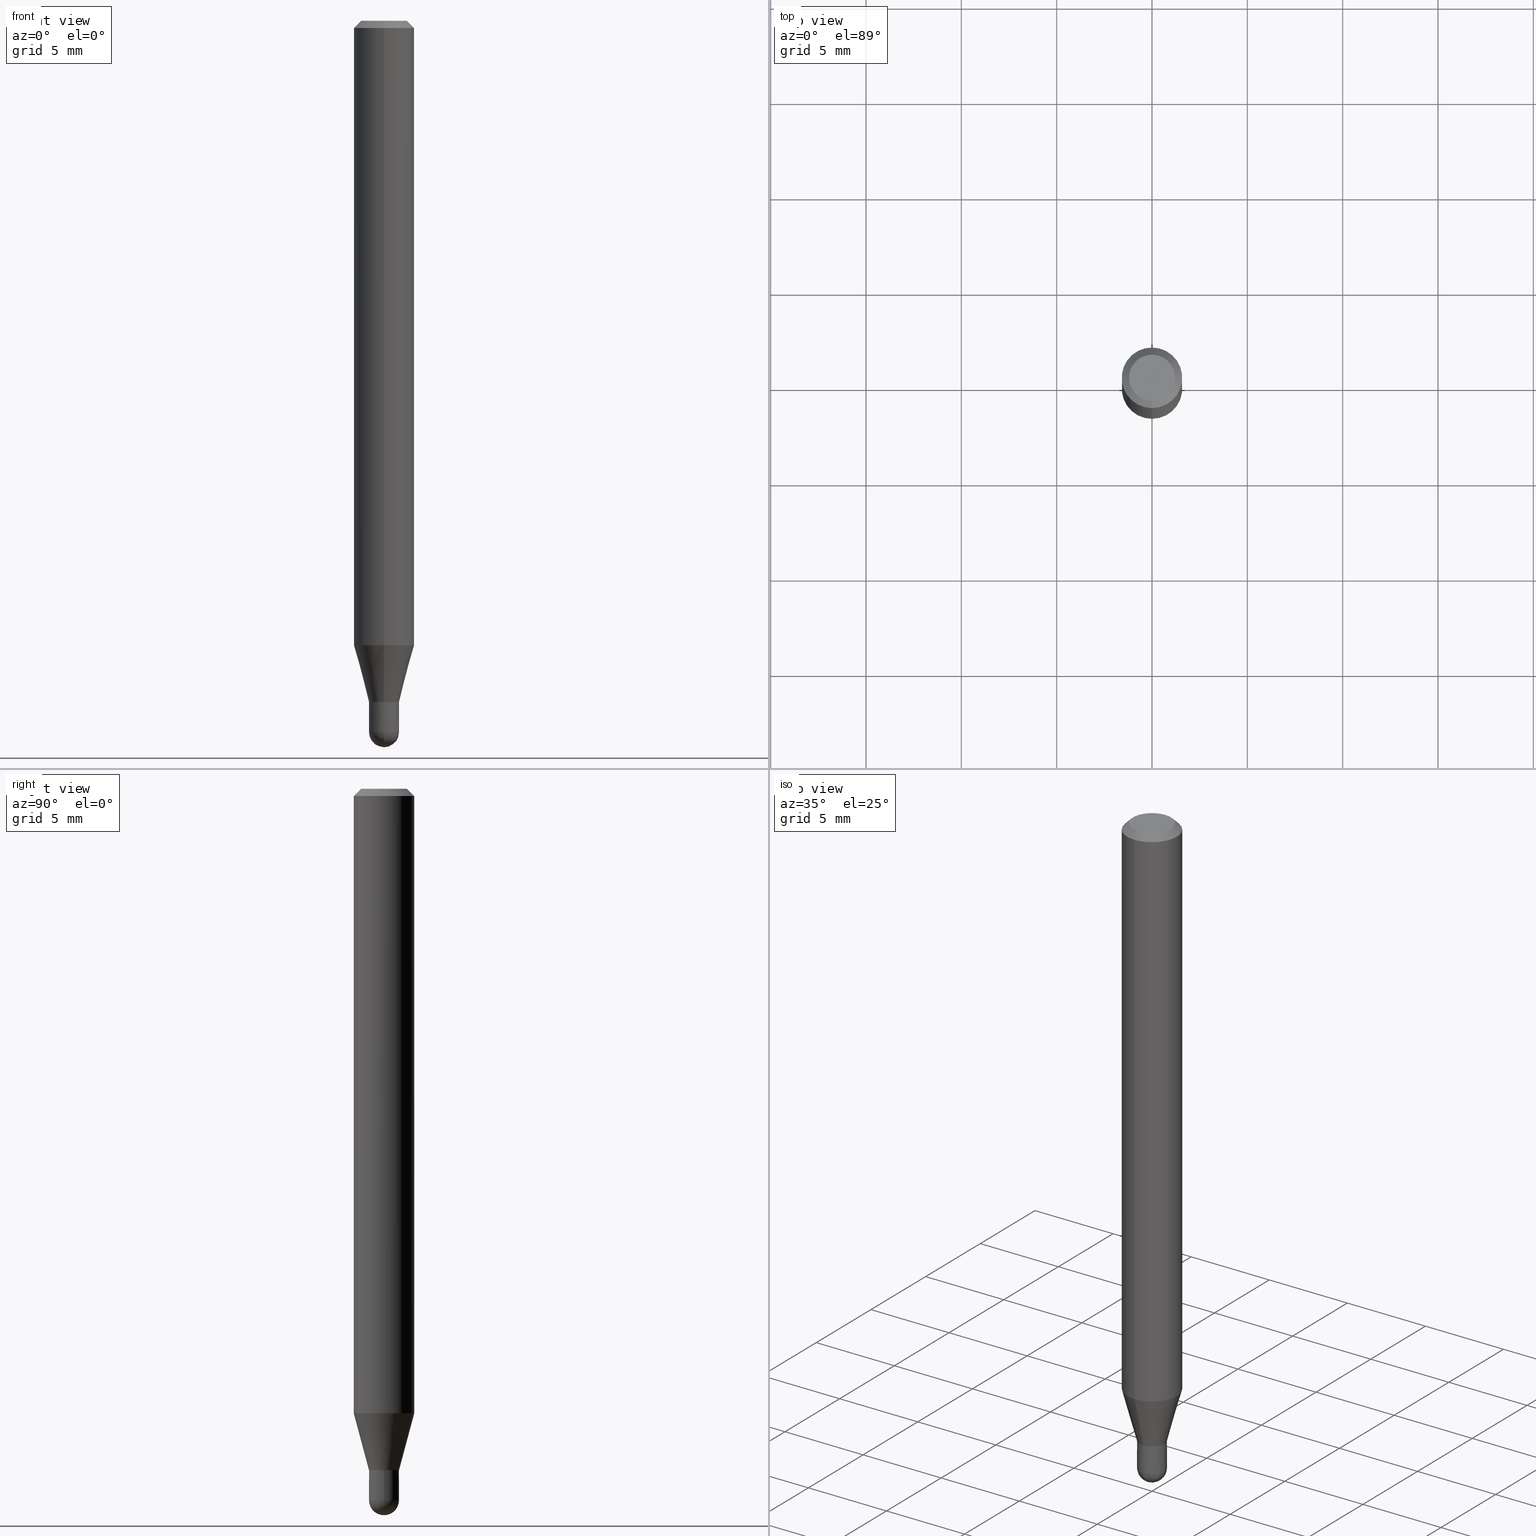
[diagram: canonical four-view strip — front | top / right | iso, engineering-drawing reading convention]
A machine part, canonical four-view strip (front | top / right | iso — engineering-drawing reading convention). The complete STEP part file that produces these views, byte-faithful:
ISO-10303-21;
HEADER;
FILE_DESCRIPTION (( 'STEP AP203' ),
    '1' );
FILE_NAME ('04373.STEP',
    '2024-03-08T18:58:08',
    ( '' ),
    ( '' ),
    'SwSTEP 2.0',
    'SolidWorks 2023',
    '' );
FILE_SCHEMA (( 'CONFIG_CONTROL_DESIGN' ));
ENDSEC;

DATA;
#1 = FACE_OUTER_BOUND ( 'NONE', #475, .T. ) ;
#2 = VERTEX_POINT ( 'NONE', #159 ) ;
#3 = APPROVAL ( #228, 'UNSPECIFIED' ) ;
#4 = CALENDAR_DATE ( 2024, 8, 3 ) ;
#5 = CIRCLE ( 'NONE', #234, 0.03049999999999999586 ) ;
#6 = CARTESIAN_POINT ( 'NONE',  ( 3.440738063177728065E-29, -4.912566581315094135E-15, -1.407000000000000028 ) ) ;
#7 = CIRCLE ( 'NONE', #428, 0.03100000000000019407 ) ;
#8 = ADVANCED_FACE ( 'NONE', ( #207 ), #368, .T. ) ;
#9 =( LENGTH_UNIT ( ) NAMED_UNIT ( * ) SI_UNIT ( $, .METRE. ) );
#10 = DIRECTION ( 'NONE',  ( 4.937700262164548042E-15, 0.7071067811865451302, -0.7071067811865499042 ) ) ;
#11 = CC_DESIGN_PERSON_AND_ORGANIZATION_ASSIGNMENT ( #48, #164, ( #324 ) ) ;
#12 = CARTESIAN_POINT ( 'NONE',  ( 0.03099999999999999978, -2.164718430082742572E-16, 1.511614800496739984E-30 ) ) ;
#13 = ORIENTED_EDGE ( 'NONE', *, *, #141, .F. ) ;
#14 = LINE ( 'NONE', #366, #240 ) ;
#15 = CARTESIAN_POINT ( 'NONE',  ( -4.287811248607203282E-16, -0.06250000000000005551, -0.01499999999999984852 ) ) ;
#16 = CIRCLE ( 'NONE', #64, 0.03099999999999999978 ) ;
#17 = AXIS2_PLACEMENT_3D ( 'NONE', #263, #445, #167 ) ;
#18 = FACE_OUTER_BOUND ( 'NONE', #50, .T. ) ;
#19 = ADVANCED_FACE ( 'NONE', ( #417 ), #375, .T. ) ;
#20 = CARTESIAN_POINT ( 'NONE',  ( 0.000000000000000000, 0.000000000000000000, 0.000000000000000000 ) ) ;
#21 = ORIENTED_EDGE ( 'NONE', *, *, #34, .T. ) ;
#22 = COORDINATED_UNIVERSAL_TIME_OFFSET ( 5, 0, .BEHIND. ) ;
#23 = DIRECTION ( 'NONE',  ( 7.105427357601000281E-15, 1.000000000000000000, 0.000000000000000000 ) ) ;
#24 = MANIFOLD_SOLID_BREP ( 'Body-Move/Copy2[2]', #27 ) ;
#25 = ORIENTED_EDGE ( 'NONE', *, *, #165, .F. ) ;
#26 = ADVANCED_FACE ( 'NONE', ( #18 ), #246, .T. ) ;
#27 = CLOSED_SHELL ( 'NONE', ( #100, #227, #26, #19, #500, #153, #108, #212, #93, #242, #8, #315 ) ) ;
#28 = DIRECTION ( 'NONE',  ( -6.982962677686266711E-15, -1.000000000000000000, 0.000000000000000000 ) ) ;
#29 = ORIENTED_EDGE ( 'NONE', *, *, #440, .T. ) ;
#30 = DIRECTION ( 'NONE',  ( -2.445442830972087969E-29, 3.491518536826648695E-15, 1.000000000000000000 ) ) ;
#31 = DIRECTION ( 'NONE',  ( -2.445442830972087689E-29, 3.491518536826648695E-15, 1.000000000000000000 ) ) ;
#32 = CIRCLE ( 'NONE', #256, 0.03099999999999999978 ) ;
#33 = FACE_OUTER_BOUND ( 'NONE', #150, .T. ) ;
#34 = EDGE_CURVE ( 'NONE', #163, #296, #95, .T. ) ;
#35 = LINE ( 'NONE', #12, #169 ) ;
#36 = PERSON ( 'UNSPECIFIED', 'UNSPECIFIED', 'UNSPECIFIED', ('UNSPECIFIED'), ('UNSPECIFIED'), ('UNSPECIFIED') ) ;
#37 = ORIENTED_EDGE ( 'NONE', *, *, #146, .T. ) ;
#38 = DIRECTION ( 'NONE',  ( -2.445468806185136597E-29, 3.491481338843145583E-15, 1.000000000000000000 ) ) ;
#39 = CC_DESIGN_APPROVAL ( #123, ( #190 ) ) ;
#40 = EDGE_CURVE ( 'NONE', #163, #458, #345, .T. ) ;
#41 = AXIS2_PLACEMENT_3D ( 'NONE', #354, #198, #147 ) ;
#42 = DIRECTION ( 'NONE',  ( 1.000000000000000000, -6.982962677686270655E-15, 0.000000000000000000 ) ) ;
#43 = CIRCLE ( 'NONE', #17, 0.03099999999999999978 ) ;
#44 = DIRECTION ( 'NONE',  ( -2.445442830972087969E-29, 3.491518536826648695E-15, 1.000000000000000000 ) ) ;
#45 = APPROVAL_STATUS ( 'not_yet_approved' ) ;
#46 = FACE_OUTER_BOUND ( 'NONE', #480, .T. ) ;
#47 = ORIENTED_EDGE ( 'NONE', *, *, #396, .T. ) ;
#48 = PERSON_AND_ORGANIZATION ( #36, #264 ) ;
#49 = DIRECTION ( 'NONE',  ( 2.438088387897960049E-29, -3.491481338843145188E-15, -1.000000000000000000 ) ) ;
#50 = EDGE_LOOP ( 'NONE', ( #497, #21, #218, #13 ) ) ;
#51 = AXIS2_PLACEMENT_3D ( 'NONE', #20, #30, #177 ) ;
#52 = DIRECTION ( 'NONE',  ( -2.445442830972087969E-29, 3.491518536826648695E-15, 1.000000000000000000 ) ) ;
#53 = PERSON_AND_ORGANIZATION ( #36, #264 ) ;
#54 = CYLINDRICAL_SURFACE ( 'NONE', #320, 0.03099999999999992345 ) ;
#55 = DATE_TIME_ROLE ( 'creation_date' ) ;
#56 = CARTESIAN_POINT ( 'NONE',  ( 1.601727569271771274E-45, -2.286891121816010784E-31, -6.549846714817980427E-17 ) ) ;
#57 = AXIS2_PLACEMENT_3D ( 'NONE', #318, #38, #402 ) ;
#58 = CYLINDRICAL_SURFACE ( 'NONE', #51, 0.03099999999999992345 ) ;
#59 = DATE_AND_TIME ( #187, #335 ) ;
#60 = ORIENTED_EDGE ( 'NONE', *, *, #512, .T. ) ;
#61 = DIRECTION ( 'NONE',  ( -6.982962677686266711E-15, -1.000000000000000000, 3.491518536826648695E-15 ) ) ;
#62 = EDGE_CURVE ( 'NONE', #380, #268, #453, .T. ) ;
#63 = DIRECTION ( 'NONE',  ( -6.982962677686265922E-15, -1.000000000000000000, 4.370956789862821150E-15 ) ) ;
#64 = AXIS2_PLACEMENT_3D ( 'NONE', #243, #287, #283 ) ;
#65 = ORIENTED_EDGE ( 'NONE', *, *, #245, .F. ) ;
#66 = CARTESIAN_POINT ( 'NONE',  ( -2.164718430082374026E-16, -0.03100000000000456210, -1.407000000000000028 ) ) ;
#67 = LINE ( 'NONE', #180, #98 ) ;
#68 = CARTESIAN_POINT ( 'NONE',  ( 2.202682480856629310E-16, 0.03099999999999473663, -1.407000000000000028 ) ) ;
#69 = EDGE_CURVE ( 'NONE', #74, #201, #32, .T. ) ;
#70 = AXIS2_PLACEMENT_3D ( 'NONE', #394, #44, #278 ) ;
#71 = AXIS2_PLACEMENT_3D ( 'NONE', #387, #188, #28 ) ;
#72 = DIRECTION ( 'NONE',  ( -6.982962677686265922E-15, -1.000000000000000000, 0.000000000000000000 ) ) ;
#73 = ORIENTED_EDGE ( 'NONE', *, *, #280, .F. ) ;
#74 = VERTEX_POINT ( 'NONE', #211 ) ;
#75 = DIRECTION ( 'NONE',  ( 5.024295867790934632E-15, 0.7071067811869542474, 0.7071067811861405650 ) ) ;
#76 = EDGE_CURVE ( 'NONE', #201, #444, #43, .T. ) ;
#77 = APPLICATION_CONTEXT ( 'configuration controlled 3d designs of mechanical parts and assemblies' ) ;
#78 = CARTESIAN_POINT ( 'NONE',  ( -2.164718430082374026E-16, -0.03100000000000456210, -1.407000000000000028 ) ) ;
#79 = APPROVAL_PERSON_ORGANIZATION ( #213, #231, #295 ) ;
#80 = CARTESIAN_POINT ( 'NONE',  ( 2.184918912462658590E-16, 0.03049999999999508313, -1.406999999999999806 ) ) ;
#81 = AXIS2_PLACEMENT_3D ( 'NONE', #372, #349, #464 ) ;
#82 = APPROVAL_STATUS ( 'not_yet_approved' ) ;
#83 = ORIENTED_EDGE ( 'NONE', *, *, #34, .F. ) ;
#84 = ORIENTED_EDGE ( 'NONE', *, *, #195, .F. ) ;
#85 = PERSON_AND_ORGANIZATION ( #36, #264 ) ;
#86 = EDGE_LOOP ( 'NONE', ( #323, #365 ) ) ;
#87 = AXIS2_PLACEMENT_3D ( 'NONE', #139, #427, #501 ) ;
#88 = DIRECTION ( 'NONE',  ( -2.445442830972087969E-29, 3.491518536826648695E-15, 1.000000000000000000 ) ) ;
#89 = CIRCLE ( 'NONE', #289, 0.03099999999999964936 ) ;
#90 = CALENDAR_DATE ( 2024, 8, 3 ) ;
#91 = ORIENTED_EDGE ( 'NONE', *, *, #141, .T. ) ;
#92 = DIRECTION ( 'NONE',  ( -6.982962677686265922E-15, -1.000000000000000000, 3.491518536826648695E-15 ) ) ;
#93 = ADVANCED_FACE ( 'NONE', ( #222 ), #328, .F. ) ;
#94 = PERSON_AND_ORGANIZATION_ROLE ( 'design_owner' ) ;
#95 = LINE ( 'NONE', #15, #419 ) ;
#96 = DIRECTION ( 'NONE',  ( -6.982962677686266711E-15, -1.000000000000000000, 3.491518536826648695E-15 ) ) ;
#97 = CIRCLE ( 'NONE', #357, 0.06250000000000000000 ) ;
#98 = VECTOR ( 'NONE', #341, 39.37007874015748143 ) ;
#99 = CARTESIAN_POINT ( 'NONE',  ( -3.773273898774340269E-16, -0.04749999999999999362, 1.003486633510859949E-16 ) ) ;
#100 = ADVANCED_FACE ( 'NONE', ( #479 ), #54, .F. ) ;
#101 = ORIENTED_EDGE ( 'NONE', *, *, #195, .T. ) ;
#102 = CARTESIAN_POINT ( 'NONE',  ( 3.439515341762241615E-29, -4.910820822046682503E-15, -1.406500000000000083 ) ) ;
#103 = VERTEX_POINT ( 'NONE', #484 ) ;
#104 = ORIENTED_EDGE ( 'NONE', *, *, #69, .T. ) ;
#105 = DIRECTION ( 'NONE',  ( -6.982962677686266711E-15, -1.000000000000000000, 0.000000000000000000 ) ) ;
#106 = APPROVAL_PERSON_ORGANIZATION ( #421, #3, #137 ) ;
#107 = CARTESIAN_POINT ( 'NONE',  ( 3.668164246458148296E-31, -5.237277805239995993E-17, -0.01500000000000006710 ) ) ;
#108 = ADVANCED_FACE ( 'NONE', ( #46 ), #330, .T. ) ;
#109 = FACE_OUTER_BOUND ( 'NONE', #145, .T. ) ;
#110 = CARTESIAN_POINT ( 'NONE',  ( -2.129803616693966881E-16, -0.03050000000000491207, -1.406999999999999806 ) ) ;
#111 = LOCAL_TIME ( 13, 58, 8.000000000000000000, #22 ) ;
#112 = EDGE_CURVE ( 'NONE', #491, #215, #401, .T. ) ;
#113 = EDGE_LOOP ( 'NONE', ( #337, #331, #259, #363 ) ) ;
#114 = CYLINDRICAL_SURFACE ( 'NONE', #57, 0.03099999999999999978 ) ;
#115 = CC_DESIGN_DATE_AND_TIME_ASSIGNMENT ( #248, #55, ( #324 ) ) ;
#116 = DIRECTION ( 'NONE',  ( -4.937700262167370586E-15, -0.7071067811869493624, 0.7071067811861454500 ) ) ;
#117 = DIRECTION ( 'NONE',  ( 0.000000000000000000, 0.000000000000000000, 1.000000000000000000 ) ) ;
#118 = CIRCLE ( 'NONE', #434, 0.04749999999999999362 ) ;
#119 = ADVANCED_FACE ( 'NONE', ( #334 ), #454, .F. ) ;
#120 = LENGTH_MEASURE_WITH_UNIT ( LENGTH_MEASURE( 0.02539999999999999897 ), #9 );
#121 = ORIENTED_EDGE ( 'NONE', *, *, #448, .F. ) ;
#122 = CARTESIAN_POINT ( 'NONE',  ( 0.000000000000000000, 0.000000000000000000, 0.000000000000000000 ) ) ;
#123 = APPROVAL ( #45, 'UNSPECIFIED' ) ;
#124 = ORIENTED_EDGE ( 'NONE', *, *, #301, .T. ) ;
#125 = FACE_OUTER_BOUND ( 'NONE', #232, .T. ) ;
#126 = CIRCLE ( 'NONE', #426, 0.03099999999999999978 ) ;
#127 = DIRECTION ( 'NONE',  ( -2.445442830972087969E-29, 3.491518536826648695E-15, 1.000000000000000000 ) ) ;
#128 = AXIS2_PLACEMENT_3D ( 'NONE', #269, #236, #461 ) ;
#129 = DIRECTION ( 'NONE',  ( -6.982962677686265922E-15, -1.000000000000000000, 3.491518536826648300E-15 ) ) ;
#130 = ORIENTED_EDGE ( 'NONE', *, *, #462, .F. ) ;
#131 = DATE_AND_TIME ( #492, #111 ) ;
#132 = DIRECTION ( 'NONE',  ( -6.982962677686265922E-15, -1.000000000000000000, 0.000000000000000000 ) ) ;
#133 = ORIENTED_EDGE ( 'NONE', *, *, #280, .T. ) ;
#134 = DIRECTION ( 'NONE',  ( 1.000000000000000000, -6.982962677686270655E-15, 0.000000000000000000 ) ) ;
#135 = CIRCLE ( 'NONE', #386, 0.03099999999999964936 ) ;
#136 = VECTOR ( 'NONE', #488, 39.37007874015748143 ) ;
#137 = APPROVAL_ROLE ( '' ) ;
#138 = CARTESIAN_POINT ( 'NONE',  ( 0.03099999999999999978, -5.128986086760580222E-15, -1.407000000000000028 ) ) ;
#139 = CARTESIAN_POINT ( 'NONE',  ( 3.592393676285966338E-29, -5.128986086760581011E-15, -1.469000000000000083 ) ) ;
#140 = CARTESIAN_POINT ( 'NONE',  ( 4.440892098500625669E-16, 0.06250000000000000000, -2.182199085516655434E-16 ) ) ;
#141 = EDGE_CURVE ( 'NONE', #458, #2, #14, .T. ) ;
#142 = AXIS2_PLACEMENT_3D ( 'NONE', #498, #312, #23 ) ;
#143 = CARTESIAN_POINT ( 'NONE',  ( 1.601727569271771274E-45, -2.286891121816010784E-31, -6.549846714817980427E-17 ) ) ;
#144 = CARTESIAN_POINT ( 'NONE',  ( 2.202682480856660617E-16, 0.03099999999999517378, -1.406500000000000083 ) ) ;
#145 = EDGE_LOOP ( 'NONE', ( #84, #471, #160, #286 ) ) ;
#146 = EDGE_CURVE ( 'NONE', #158, #413, #89, .T. ) ;
#147 = DIRECTION ( 'NONE',  ( -6.982962677686265922E-15, -1.000000000000000000, 3.483106191921935554E-15 ) ) ;
#148 = VECTOR ( 'NONE', #244, 39.37007874015748854 ) ;
#149 = DIRECTION ( 'NONE',  ( -1.000000000000000000, 6.982962677686265922E-15, -4.883557194083112340E-29 ) ) ;
#150 = EDGE_LOOP ( 'NONE', ( #37, #325, #460, #192 ) ) ;
#151 = FACE_OUTER_BOUND ( 'NONE', #508, .T. ) ;
#152 = CARTESIAN_POINT ( 'NONE',  ( 0.000000000000000000, 0.000000000000000000, 0.000000000000000000 ) ) ;
#153 = ADVANCED_FACE ( 'NONE', ( #125 ), #510, .T. ) ;
#154 = AXIS2_PLACEMENT_3D ( 'NONE', #507, #149, #362 ) ;
#155 = SECURITY_CLASSIFICATION_LEVEL ( 'unclassified' ) ;
#156 = VECTOR ( 'NONE', #31, 39.37007874015748143 ) ;
#157 = DIRECTION ( 'NONE',  ( -6.982962677686265922E-15, -1.000000000000000000, 0.000000000000000000 ) ) ;
#158 = VERTEX_POINT ( 'NONE', #66 ) ;
#159 = CARTESIAN_POINT ( 'NONE',  ( 4.440892098500942692E-16, 0.06249999999999995143, -0.01500000000000028394 ) ) ;
#160 = ORIENTED_EDGE ( 'NONE', *, *, #308, .T. ) ;
#161 = ORIENTED_EDGE ( 'NONE', *, *, #62, .F. ) ;
#162 = ORIENTED_EDGE ( 'NONE', *, *, #273, .T. ) ;
#163 = VERTEX_POINT ( 'NONE', #99 ) ;
#164 = PERSON_AND_ORGANIZATION_ROLE ( 'creator' ) ;
#165 = EDGE_CURVE ( 'NONE', #302, #444, #297, .T. ) ;
#166 = ORIENTED_EDGE ( 'NONE', *, *, #396, .F. ) ;
#167 = DIRECTION ( 'NONE',  ( 1.000000000000000000, -6.982962677686270655E-15, 0.000000000000000000 ) ) ;
#168 = ORIENTED_EDGE ( 'NONE', *, *, #448, .T. ) ;
#169 = VECTOR ( 'NONE', #329, 39.37007874015748143 ) ;
#170 = ORIENTED_EDGE ( 'NONE', *, *, #62, .T. ) ;
#171 = APPROVAL_ROLE ( '' ) ;
#172 = CARTESIAN_POINT ( 'NONE',  ( 3.592393676285966338E-29, -5.128986086760581011E-15, -1.469000000000000083 ) ) ;
#173 = MECHANICAL_CONTEXT ( 'NONE', #185, 'mechanical' ) ;
#174 = CARTESIAN_POINT ( 'NONE',  ( 0.000000000000000000, 0.000000000000000000, 0.000000000000000000 ) ) ;
#175 = ORIENTED_EDGE ( 'NONE', *, *, #317, .T. ) ;
#176 = SHAPE_DEFINITION_REPRESENTATION ( #183, #486 ) ;
#177 = DIRECTION ( 'NONE',  ( -6.982962677686265922E-15, -1.000000000000000000, 3.491518536826648300E-15 ) ) ;
#178 = ORIENTED_EDGE ( 'NONE', *, *, #308, .F. ) ;
#179 = ORIENTED_EDGE ( 'NONE', *, *, #252, .F. ) ;
#180 = CARTESIAN_POINT ( 'NONE',  ( 2.202682480856304644E-16, 0.03099999999999992345, -1.082370746416258340E-16 ) ) ;
#181 = AXIS2_PLACEMENT_3D ( 'NONE', #251, #379, #92 ) ;
#182 = LINE ( 'NONE', #466, #210 ) ;
#183 = PRODUCT_DEFINITION_SHAPE ( 'NONE', 'NONE',  #324 ) ;
#184 = ORIENTED_EDGE ( 'NONE', *, *, #350, .T. ) ;
#185 = APPLICATION_CONTEXT ( 'configuration controlled 3d designs of mechanical parts and assemblies' ) ;
#186 = CARTESIAN_POINT ( 'NONE',  ( 3.440774610302487541E-29, -4.912514243752305891E-15, -1.407000000000000028 ) ) ;
#187 = CALENDAR_DATE ( 2024, 8, 3 ) ;
#188 = DIRECTION ( 'NONE',  ( -2.445442830972087969E-29, 3.491518536826648695E-15, 1.000000000000000000 ) ) ;
#189 = CC_DESIGN_DATE_AND_TIME_ASSIGNMENT ( #59, #463, ( #494 ) ) ;
#190 = PRODUCT_DEFINITION_FORMATION_WITH_SPECIFIED_SOURCE ( 'ANY', '', #275, .NOT_KNOWN. ) ;
#191 = CIRCLE ( 'NONE', #395, 0.06250000000000000000 ) ;
#192 = ORIENTED_EDGE ( 'NONE', *, *, #423, .F. ) ;
#193 = AXIS2_PLACEMENT_3D ( 'NONE', #107, #382, #425 ) ;
#194 = CARTESIAN_POINT ( 'NONE',  ( 3.440738063177728065E-29, -4.912566581315094135E-15, -1.407000000000000028 ) ) ;
#195 = EDGE_CURVE ( 'NONE', #413, #361, #67, .T. ) ;
#196 = CARTESIAN_POINT ( 'NONE',  ( 3.589742660789510177E-29, -5.132782491837937933E-15, -1.469000000000000083 ) ) ;
#197 = VERTEX_POINT ( 'NONE', #138 ) ;
#198 = DIRECTION ( 'NONE',  ( -2.445442830972087969E-29, 3.491518536826648695E-15, 1.000000000000000000 ) ) ;
#199 = CONICAL_SURFACE ( 'NONE', #477, 0.03099999999999964936, 0.2617993877991574014 ) ;
#200 = SPHERICAL_SURFACE ( 'NONE', #449, 0.03100000000000001713 ) ;
#201 = VERTEX_POINT ( 'NONE', #307 ) ;
#202 = ORIENTED_EDGE ( 'NONE', *, *, #423, .T. ) ;
#203 = DIRECTION ( 'NONE',  ( -6.982962677686265922E-15, -1.000000000000000000, 0.000000000000000000 ) ) ;
#204 = EDGE_CURVE ( 'NONE', #237, #296, #430, .T. ) ;
#205 = ORIENTED_EDGE ( 'NONE', *, *, #301, .F. ) ;
#206 = CALENDAR_DATE ( 2024, 8, 3 ) ;
#207 = FACE_OUTER_BOUND ( 'NONE', #437, .T. ) ;
#208 = APPROVAL_PERSON_ORGANIZATION ( #451, #123, #171 ) ;
#209 = COORDINATED_UNIVERSAL_TIME_OFFSET ( 5, 0, .BEHIND. ) ;
#210 = VECTOR ( 'NONE', #347, 39.37007874015748143 ) ;
#211 = CARTESIAN_POINT ( 'NONE',  ( -2.164718430082383640E-16, -0.03100000000000513803, -1.469000000000000083 ) ) ;
#212 = ADVANCED_FACE ( 'NONE', ( #422 ), #359, .T. ) ;
#213 = PERSON_AND_ORGANIZATION ( #36, #264 ) ;
#214 = DIRECTION ( 'NONE',  ( 6.982962677686265922E-15, 1.000000000000000000, -3.483106191921935554E-15 ) ) ;
#215 = VERTEX_POINT ( 'NONE', #459 ) ;
#216 = ORIENTED_EDGE ( 'NONE', *, *, #411, .F. ) ;
#217 = PERSON_AND_ORGANIZATION_ROLE ( 'classification_officer' ) ;
#218 = ORIENTED_EDGE ( 'NONE', *, *, #383, .T. ) ;
#219 = CARTESIAN_POINT ( 'NONE',  ( 3.668164246458148296E-31, -5.237277805239995993E-17, -0.01500000000000006710 ) ) ;
#220 = VECTOR ( 'NONE', #75, 39.37007874015748854 ) ;
#221 = PERSON_AND_ORGANIZATION ( #36, #264 ) ;
#222 = FACE_OUTER_BOUND ( 'NONE', #86, .T. ) ;
#223 = ORIENTED_EDGE ( 'NONE', *, *, #462, .T. ) ;
#224 = AXIS2_PLACEMENT_3D ( 'NONE', #340, #52, #489 ) ;
#225 = ORIENTED_EDGE ( 'NONE', *, *, #204, .T. ) ;
#226 = DIRECTION ( 'NONE',  ( -2.445442830972087689E-29, 3.491518536826648695E-15, 1.000000000000000000 ) ) ;
#227 = ADVANCED_FACE ( 'NONE', ( #389 ), #351, .T. ) ;
#228 = APPROVAL_STATUS ( 'not_yet_approved' ) ;
#229 = ORIENTED_EDGE ( 'NONE', *, *, #204, .F. ) ;
#230 = CARTESIAN_POINT ( 'NONE',  ( -4.364351673553912750E-16, -0.06250000000000005551, -0.01499999999999984852 ) ) ;
#231 = APPROVAL ( #82, 'UNSPECIFIED' ) ;
#232 = EDGE_LOOP ( 'NONE', ( #284, #424, #202, #166 ) ) ;
#233 = LINE ( 'NONE', #140, #156 ) ;
#234 = AXIS2_PLACEMENT_3D ( 'NONE', #469, #316, #435 ) ;
#235 = FACE_OUTER_BOUND ( 'NONE', #490, .T. ) ;
#236 = DIRECTION ( 'NONE',  ( -2.445442830972087969E-29, 3.491518536826648695E-15, 1.000000000000000000 ) ) ;
#237 = VERTEX_POINT ( 'NONE', #420 ) ;
#238 = CARTESIAN_POINT ( 'NONE',  ( 3.440774610302487541E-29, -4.912514243752305891E-15, -1.407000000000000028 ) ) ;
#239 = LOCAL_TIME ( 13, 58, 8.000000000000000000, #209 ) ;
#240 = VECTOR ( 'NONE', #10, 39.37007874015748143 ) ;
#241 = FACE_OUTER_BOUND ( 'NONE', #358, .T. ) ;
#242 = ADVANCED_FACE ( 'NONE', ( #235 ), #344, .F. ) ;
#243 = CARTESIAN_POINT ( 'NONE',  ( 3.592393676285966338E-29, -5.128986086760581011E-15, -1.469000000000000083 ) ) ;
#244 = DIRECTION ( 'NONE',  ( -1.807323732225378260E-15, -0.2588190451025250693, 0.9659258262890670910 ) ) ;
#245 = EDGE_CURVE ( 'NONE', #388, #361, #7, .T. ) ;
#246 = CONICAL_SURFACE ( 'NONE', #408, 0.06250000000000000000, 0.7853981633974483900 ) ;
#247 = DIRECTION ( 'NONE',  ( -6.982962677686265922E-15, -1.000000000000000000, 0.000000000000000000 ) ) ;
#248 = DATE_AND_TIME ( #4, #239 ) ;
#249 = COORDINATED_UNIVERSAL_TIME_OFFSET ( 5, 0, .BEHIND. ) ;
#250 = ORIENTED_EDGE ( 'NONE', *, *, #512, .F. ) ;
#251 = CARTESIAN_POINT ( 'NONE',  ( 0.000000000000000000, 0.000000000000000000, 0.000000000000000000 ) ) ;
#252 = EDGE_CURVE ( 'NONE', #458, #163, #118, .T. ) ;
#253 = CC_DESIGN_SECURITY_CLASSIFICATION ( #494, ( #190 ) ) ;
#254 = ORIENTED_EDGE ( 'NONE', *, *, #112, .F. ) ;
#255 = PERSON_AND_ORGANIZATION ( #36, #264 ) ;
#256 = AXIS2_PLACEMENT_3D ( 'NONE', #172, #303, #298 ) ;
#257 = DIRECTION ( 'NONE',  ( -2.445442830972087969E-29, 3.491518536826648695E-15, 1.000000000000000000 ) ) ;
#258 = EDGE_LOOP ( 'NONE', ( #83, #179, #91, #274 ) ) ;
#259 = ORIENTED_EDGE ( 'NONE', *, *, #76, .F. ) ;
#260 = APPROVAL_DATE_TIME ( #482, #123 ) ;
#261 = CARTESIAN_POINT ( 'NONE',  ( 2.164718430083086219E-16, 0.03099999999999508704, -1.407000000000000028 ) ) ;
#262 = APPLICATION_PROTOCOL_DEFINITION ( 'international standard', 'config_control_design', 1994, #77 ) ;
#263 = CARTESIAN_POINT ( 'NONE',  ( 3.592393676285966338E-29, -5.128986086760581011E-15, -1.469000000000000083 ) ) ;
#264 = ORGANIZATION ( 'UNSPECIFIED', 'UNSPECIFIED', '' ) ;
#265 = DIRECTION ( 'NONE',  ( -1.000000000000000000, 6.982962677686265922E-15, -4.876176775795935793E-29 ) ) ;
#266 = AXIS2_PLACEMENT_3D ( 'NONE', #410, #88, #300 ) ;
#267 = LOCAL_TIME ( 13, 58, 8.000000000000000000, #409 ) ;
#268 = VERTEX_POINT ( 'NONE', #348 ) ;
#269 = CARTESIAN_POINT ( 'NONE',  ( 3.440738063177726944E-29, -4.912566581315093346E-15, -1.406999999999999806 ) ) ;
#270 = ORIENTED_EDGE ( 'NONE', *, *, #350, .F. ) ;
#271 = ORIENTED_EDGE ( 'NONE', *, *, #338, .T. ) ;
#272 = DIRECTION ( 'NONE',  ( -2.445442830972087969E-29, 3.491518536826648695E-15, 1.000000000000000000 ) ) ;
#273 = EDGE_CURVE ( 'NONE', #237, #103, #191, .T. ) ;
#274 = ORIENTED_EDGE ( 'NONE', *, *, #495, .T. ) ;
#275 = PRODUCT ( '04373', '04373', '', ( #173 ) ) ;
#276 = DIRECTION ( 'NONE',  ( -2.445442830972087969E-29, 3.491518536826648695E-15, 1.000000000000000000 ) ) ;
#277 = DIRECTION ( 'NONE',  ( -2.445442830972087408E-29, 3.491518536826648695E-15, 1.000000000000000000 ) ) ;
#278 = DIRECTION ( 'NONE',  ( -6.982962677686265922E-15, -1.000000000000000000, 3.483106191921935554E-15 ) ) ;
#279 = DIRECTION ( 'NONE',  ( -2.445442830972087969E-29, 3.491518536826648695E-15, 1.000000000000000000 ) ) ;
#280 = EDGE_CURVE ( 'NONE', #103, #2, #233, .T. ) ;
#281 = DESIGN_CONTEXT ( 'detailed design', #77, 'design' ) ;
#282 = CIRCLE ( 'NONE', #319, 0.03099999999999999978 ) ;
#283 = DIRECTION ( 'NONE',  ( 1.000000000000000000, -6.982962677686270655E-15, 0.000000000000000000 ) ) ;
#284 = ORIENTED_EDGE ( 'NONE', *, *, #404, .F. ) ;
#285 = DIRECTION ( 'NONE',  ( -2.445442830972087969E-29, 3.491518536826648695E-15, 1.000000000000000000 ) ) ;
#286 = ORIENTED_EDGE ( 'NONE', *, *, #245, .T. ) ;
#287 = DIRECTION ( 'NONE',  ( -2.445468806185136597E-29, 3.491481338843145583E-15, 1.000000000000000000 ) ) ;
#288 = CC_DESIGN_PERSON_AND_ORGANIZATION_ASSIGNMENT ( #255, #94, ( #275 ) ) ;
#289 = AXIS2_PLACEMENT_3D ( 'NONE', #6, #414, #157 ) ;
#290 =( NAMED_UNIT ( * ) PLANE_ANGLE_UNIT ( ) SI_UNIT ( $, .RADIAN. ) );
#291 = CARTESIAN_POINT ( 'NONE',  ( -0.03099999999999999978, 2.202682480856310560E-16, -1.524869877979020612E-30 ) ) ;
#292 = APPLICATION_PROTOCOL_DEFINITION ( 'international standard', 'config_control_design', 1994, #185 ) ;
#293 = DIRECTION ( 'NONE',  ( 2.445442830972087969E-29, -3.491518536826648695E-15, -1.000000000000000000 ) ) ;
#294 = CIRCLE ( 'NONE', #41, 0.06250000000000000000 ) ;
#295 = APPROVAL_ROLE ( '' ) ;
#296 = VERTEX_POINT ( 'NONE', #230 ) ;
#297 = CIRCLE ( 'NONE', #142, 0.03100000000000001713 ) ;
#298 = DIRECTION ( 'NONE',  ( 1.000000000000000000, -6.982962677686270655E-15, 0.000000000000000000 ) ) ;
#299 = EDGE_LOOP ( 'NONE', ( #168, #175 ) ) ;
#300 = DIRECTION ( 'NONE',  ( -6.982962677686265922E-15, -1.000000000000000000, 0.000000000000000000 ) ) ;
#301 = EDGE_CURVE ( 'NONE', #361, #388, #306, .T. ) ;
#302 = VERTEX_POINT ( 'NONE', #314 ) ;
#303 = DIRECTION ( 'NONE',  ( -2.445468806185136597E-29, 3.491481338843145583E-15, 1.000000000000000000 ) ) ;
#304 = CIRCLE ( 'NONE', #87, 0.03099999999999999978 ) ;
#305 = LINE ( 'NONE', #457, #220 ) ;
#306 = CIRCLE ( 'NONE', #71, 0.03100000000000019407 ) ;
#307 = CARTESIAN_POINT ( 'NONE',  ( 0.03099999999999999978, -5.237222008264717388E-15, -1.469000000000000083 ) ) ;
#308 = EDGE_CURVE ( 'NONE', #158, #388, #182, .T. ) ;
#309 = EDGE_LOOP ( 'NONE', ( #397, #184, #65, #130 ) ) ;
#310 = DIRECTION ( 'NONE',  ( -6.982962677686265922E-15, -1.000000000000000000, 3.491518536826648695E-15 ) ) ;
#311 = MANIFOLD_SOLID_BREP ( 'Body-Move/Copy2[1]', #456 ) ;
#312 = DIRECTION ( 'NONE',  ( 1.000000000000000000, -7.105427357601001070E-15, 4.926315508542082329E-29 ) ) ;
#313 = DIMENSIONAL_EXPONENTS ( 1.000000000000000000, 0.000000000000000000, 0.000000000000000000, 0.000000000000000000, 0.000000000000000000, 0.000000000000000000, 0.000000000000000000 ) ;
#314 = CARTESIAN_POINT ( 'NONE',  ( 3.664226686033021215E-29, -5.242916615880753165E-15, -1.500000000000000222 ) ) ;
#315 = ADVANCED_FACE ( 'NONE', ( #109 ), #58, .F. ) ;
#316 = DIRECTION ( 'NONE',  ( -2.445442830972087969E-29, 3.491518536826648695E-15, 1.000000000000000000 ) ) ;
#317 = EDGE_CURVE ( 'NONE', #268, #197, #282, .T. ) ;
#318 = CARTESIAN_POINT ( 'NONE',  ( 0.000000000000000000, 0.000000000000000000, 0.000000000000000000 ) ) ;
#319 = AXIS2_PLACEMENT_3D ( 'NONE', #186, #499, #134 ) ;
#320 = AXIS2_PLACEMENT_3D ( 'NONE', #174, #257, #129 ) ;
#321 = CYLINDRICAL_SURFACE ( 'NONE', #367, 0.03099999999999999978 ) ;
#322 = CARTESIAN_POINT ( 'NONE',  ( 3.840629472727447874E-16, 0.04749999999999999362, -2.313455976474456528E-16 ) ) ;
#323 = ORIENTED_EDGE ( 'NONE', *, *, #252, .T. ) ;
#324 = PRODUCT_DEFINITION ( 'UNKNOWN', '', #190, #281 ) ;
#325 = ORIENTED_EDGE ( 'NONE', *, *, #404, .T. ) ;
#326 = CARTESIAN_POINT ( 'NONE',  ( -0.03099999999999999978, -4.800481917170811803E-15, -1.469000000000000083 ) ) ;
#327 = LOCAL_TIME ( 13, 58, 8.000000000000000000, #249 ) ;
#328 = PLANE ( 'NONE',  #496 ) ;
#329 = DIRECTION ( 'NONE',  ( -2.445468806185136877E-29, 3.491481338843145188E-15, 1.000000000000000000 ) ) ;
#330 = CYLINDRICAL_SURFACE ( 'NONE', #224, 0.06250000000000000000 ) ;
#331 = ORIENTED_EDGE ( 'NONE', *, *, #165, .T. ) ;
#332 = DIRECTION ( 'NONE',  ( 1.000000000000000000, 0.000000000000000000, 0.000000000000000000 ) ) ;
#333 = ORIENTED_EDGE ( 'NONE', *, *, #383, .F. ) ;
#334 = FACE_OUTER_BOUND ( 'NONE', #299, .T. ) ;
#335 = LOCAL_TIME ( 13, 58, 8.000000000000000000, #373 ) ;
#336 = DIRECTION ( 'NONE',  ( -2.445442830972087969E-29, 3.491518536826648695E-15, 1.000000000000000000 ) ) ;
#337 = ORIENTED_EDGE ( 'NONE', *, *, #355, .F. ) ;
#338 = EDGE_CURVE ( 'NONE', #444, #380, #304, .T. ) ;
#339 = PERSON_AND_ORGANIZATION_ROLE ( 'design_supplier' ) ;
#340 = CARTESIAN_POINT ( 'NONE',  ( 0.000000000000000000, 0.000000000000000000, 0.000000000000000000 ) ) ;
#341 = DIRECTION ( 'NONE',  ( -2.445442830972087689E-29, 3.491518536826648695E-15, 1.000000000000000000 ) ) ;
#342 = AXIS2_PLACEMENT_3D ( 'NONE', #122, #117, #332 ) ;
#343 = APPROVAL_DATE_TIME ( #131, #3 ) ;
#344 = PLANE ( 'NONE',  #504 ) ;
#345 = CIRCLE ( 'NONE', #450, 0.04749999999999999362 ) ;
#346 = ORIENTED_EDGE ( 'NONE', *, *, #112, .T. ) ;
#347 = DIRECTION ( 'NONE',  ( -2.445442830972087689E-29, 3.491518536826648695E-15, 1.000000000000000000 ) ) ;
#348 = CARTESIAN_POINT ( 'NONE',  ( -0.03099999999999999978, -4.800481917170811803E-15, -1.407000000000000028 ) ) ;
#349 = DIRECTION ( 'NONE',  ( -2.445442830972087969E-29, 3.491518536826648695E-15, 1.000000000000000000 ) ) ;
#350 = EDGE_CURVE ( 'NONE', #491, #361, #305, .T. ) ;
#351 = CONICAL_SURFACE ( 'NONE', #128, 0.03049999999999999586, 0.7853981633980202659 ) ;
#352 = CARTESIAN_POINT ( 'NONE',  ( 3.440738063177728065E-29, -4.912566581315094135E-15, -1.407000000000000028 ) ) ;
#353 = UNCERTAINTY_MEASURE_WITH_UNIT (LENGTH_MEASURE( 1.000000000000000082E-05 ), #377, 'distance_accuracy_value', 'NONE');
#354 = CARTESIAN_POINT ( 'NONE',  ( 3.668164246458148296E-31, -5.237277805239995993E-17, -0.01500000000000006710 ) ) ;
#355 = EDGE_CURVE ( 'NONE', #302, #74, #502, .T. ) ;
#356 = DIRECTION ( 'NONE',  ( 1.000000000000000000, -6.982962677686265922E-15, 4.883557194083112340E-29 ) ) ;
#357 = AXIS2_PLACEMENT_3D ( 'NONE', #511, #509, #476 ) ;
#358 = EDGE_LOOP ( 'NONE', ( #25, #381, #472, #473 ) ) ;
#359 = CONICAL_SURFACE ( 'NONE', #193, 0.06250000000000000000, 0.7853981633974483900 ) ;
#360 = DIRECTION ( 'NONE',  ( -2.445468806185136597E-29, 3.491481338843145583E-15, 1.000000000000000000 ) ) ;
#361 = VERTEX_POINT ( 'NONE', #144 ) ;
#362 = DIRECTION ( 'NONE',  ( -6.982962677686265922E-15, -1.000000000000000000, 0.000000000000000000 ) ) ;
#363 = ORIENTED_EDGE ( 'NONE', *, *, #69, .F. ) ;
#364 =( NAMED_UNIT ( * ) SI_UNIT ( $, .STERADIAN. ) SOLID_ANGLE_UNIT ( ) );
#365 = ORIENTED_EDGE ( 'NONE', *, *, #40, .T. ) ;
#366 = CARTESIAN_POINT ( 'NONE',  ( 4.364351673553919652E-16, 0.06249999999999995143, -0.01500000000000028394 ) ) ;
#367 = AXIS2_PLACEMENT_3D ( 'NONE', #152, #360, #398 ) ;
#368 = CONICAL_SURFACE ( 'NONE', #266, 0.03049999999999999586, 0.7853981633980202659 ) ;
#369 = DIRECTION ( 'NONE',  ( 1.000000000000000000, -6.982962677686265922E-15, 4.883557194083112340E-29 ) ) ;
#370 = CARTESIAN_POINT ( 'NONE',  ( 3.316907271900976096E-16, 0.04749999999999999362, -1.985963640733557137E-16 ) ) ;
#371 = SPHERICAL_SURFACE ( 'NONE', #487, 0.03100000000000001713 ) ;
#372 = CARTESIAN_POINT ( 'NONE',  ( 3.440738063177728065E-29, -4.912566581315094135E-15, -1.407000000000000028 ) ) ;
#373 = COORDINATED_UNIVERSAL_TIME_OFFSET ( 5, 0, .BEHIND. ) ;
#374 = ADVANCED_FACE ( 'NONE', ( #474 ), #200, .T. ) ;
#375 = CYLINDRICAL_SURFACE ( 'NONE', #181, 0.06250000000000000000 ) ;
#376 = ORIENTED_EDGE ( 'NONE', *, *, #495, .F. ) ;
#377 =( CONVERSION_BASED_UNIT ( 'INCH', #120 ) LENGTH_UNIT ( ) NAMED_UNIT ( #313 ) );
#378 = AXIS2_PLACEMENT_3D ( 'NONE', #481, #127, #132 ) ;
#379 = DIRECTION ( 'NONE',  ( -2.445442830972087969E-29, 3.491518536826648695E-15, 1.000000000000000000 ) ) ;
#380 = VERTEX_POINT ( 'NONE', #326 ) ;
#381 = ORIENTED_EDGE ( 'NONE', *, *, #355, .T. ) ;
#382 = DIRECTION ( 'NONE',  ( 2.445442830972087969E-29, -3.491518536826648695E-15, -1.000000000000000000 ) ) ;
#383 = EDGE_CURVE ( 'NONE', #296, #2, #294, .T. ) ;
#384 = CARTESIAN_POINT ( 'NONE',  ( -4.364351673553916201E-16, -0.06250000000000000000, 2.182199085516655434E-16 ) ) ;
#385 = ORIENTED_EDGE ( 'NONE', *, *, #429, .F. ) ;
#386 = AXIS2_PLACEMENT_3D ( 'NONE', #352, #285, #203 ) ;
#387 = CARTESIAN_POINT ( 'NONE',  ( 3.439515341762241615E-29, -4.910820822046682503E-15, -1.406500000000000083 ) ) ;
#388 = VERTEX_POINT ( 'NONE', #399 ) ;
#389 = FACE_OUTER_BOUND ( 'NONE', #309, .T. ) ;
#390 = CARTESIAN_POINT ( 'NONE',  ( 3.153252781073657425E-29, -4.502105057202427276E-15, -1.289440399561582851 ) ) ;
#391 = ADVANCED_FACE ( 'NONE', ( #1 ), #321, .T. ) ;
#392 = ORIENTED_EDGE ( 'NONE', *, *, #317, .F. ) ;
#393 =( GEOMETRIC_REPRESENTATION_CONTEXT ( 3 ) GLOBAL_UNCERTAINTY_ASSIGNED_CONTEXT ( ( #353 ) ) GLOBAL_UNIT_ASSIGNED_CONTEXT ( ( #377, #290, #364 ) ) REPRESENTATION_CONTEXT ( 'NONE', 'WORKASPACE' ) );
#394 = CARTESIAN_POINT ( 'NONE',  ( 3.668164246458148296E-31, -5.237277805239995993E-17, -0.01500000000000006710 ) ) ;
#395 = AXIS2_PLACEMENT_3D ( 'NONE', #390, #276, #63 ) ;
#396 = EDGE_CURVE ( 'NONE', #103, #237, #97, .T. ) ;
#397 = ORIENTED_EDGE ( 'NONE', *, *, #429, .T. ) ;
#398 = DIRECTION ( 'NONE',  ( 1.000000000000000000, -6.982962677686266711E-15, 4.876176775795935232E-29 ) ) ;
#399 = CARTESIAN_POINT ( 'NONE',  ( -2.164718430082419632E-16, -0.03100000000000521436, -1.406500000000000083 ) ) ;
#400 = ORIENTED_EDGE ( 'NONE', *, *, #76, .T. ) ;
#401 = CIRCLE ( 'NONE', #378, 0.03049999999999999586 ) ;
#402 = DIRECTION ( 'NONE',  ( 1.000000000000000000, -6.982962677686266711E-15, 4.876176775795935232E-29 ) ) ;
#403 = DIRECTION ( 'NONE',  ( -6.982962677686265922E-15, -1.000000000000000000, 0.000000000000000000 ) ) ;
#404 = EDGE_CURVE ( 'NONE', #413, #103, #470, .T. ) ;
#405 = DIRECTION ( 'NONE',  ( -4.851104656540964275E-15, -0.7071067811865500152, -0.7071067811865450192 ) ) ;
#406 = ADVANCED_FACE ( 'NONE', ( #151 ), #114, .T. ) ;
#407 = CC_DESIGN_APPROVAL ( #3, ( #494 ) ) ;
#408 = AXIS2_PLACEMENT_3D ( 'NONE', #219, #293, #214 ) ;
#409 = COORDINATED_UNIVERSAL_TIME_OFFSET ( 5, 0, .BEHIND. ) ;
#410 = CARTESIAN_POINT ( 'NONE',  ( 3.440738063177726944E-29, -4.912566581315093346E-15, -1.406999999999999806 ) ) ;
#411 = EDGE_CURVE ( 'NONE', #413, #158, #135, .T. ) ;
#412 = PERSON_AND_ORGANIZATION_ROLE ( 'creator' ) ;
#413 = VERTEX_POINT ( 'NONE', #433 ) ;
#414 = DIRECTION ( 'NONE',  ( -2.445442830972087969E-29, 3.491518536826648695E-15, 1.000000000000000000 ) ) ;
#415 = CC_DESIGN_PERSON_AND_ORGANIZATION_ASSIGNMENT ( #85, #217, ( #494 ) ) ;
#416 = DATE_AND_TIME ( #206, #267 ) ;
#417 = FACE_OUTER_BOUND ( 'NONE', #441, .T. ) ;
#418 = VECTOR ( 'NONE', #116, 39.37007874015748854 ) ;
#419 = VECTOR ( 'NONE', #405, 39.37007874015748143 ) ;
#420 = CARTESIAN_POINT ( 'NONE',  ( -4.364351673553602629E-16, -0.06250000000000452416, -1.289440399561582629 ) ) ;
#421 = PERSON_AND_ORGANIZATION ( #36, #264 ) ;
#422 = FACE_OUTER_BOUND ( 'NONE', #258, .T. ) ;
#423 = EDGE_CURVE ( 'NONE', #158, #237, #436, .T. ) ;
#424 = ORIENTED_EDGE ( 'NONE', *, *, #411, .T. ) ;
#425 = DIRECTION ( 'NONE',  ( 6.982962677686265922E-15, 1.000000000000000000, -3.483106191921935554E-15 ) ) ;
#426 = AXIS2_PLACEMENT_3D ( 'NONE', #238, #431, #42 ) ;
#427 = DIRECTION ( 'NONE',  ( -2.445468806185136597E-29, 3.491481338843145583E-15, 1.000000000000000000 ) ) ;
#428 = AXIS2_PLACEMENT_3D ( 'NONE', #102, #493, #105 ) ;
#429 = EDGE_CURVE ( 'NONE', #215, #491, #5, .T. ) ;
#430 = LINE ( 'NONE', #384, #439 ) ;
#431 = DIRECTION ( 'NONE',  ( -2.445468806185136597E-29, 3.491481338843145583E-15, 1.000000000000000000 ) ) ;
#432 = CIRCLE ( 'NONE', #70, 0.06250000000000000000 ) ;
#433 = CARTESIAN_POINT ( 'NONE',  ( 3.321787289678785878E-16, 0.03099999999999473663, -1.407000000000000028 ) ) ;
#434 = AXIS2_PLACEMENT_3D ( 'NONE', #143, #272, #61 ) ;
#435 = DIRECTION ( 'NONE',  ( -6.982962677686265922E-15, -1.000000000000000000, 0.000000000000000000 ) ) ;
#436 = LINE ( 'NONE', #78, #148 ) ;
#437 = EDGE_LOOP ( 'NONE', ( #270, #346, #223, #205 ) ) ;
#438 = CARTESIAN_POINT ( 'NONE',  ( 2.202682480856669985E-16, 0.03099999999999487540, -1.469000000000000083 ) ) ;
#439 = VECTOR ( 'NONE', #226, 39.37007874015748143 ) ;
#440 = EDGE_CURVE ( 'NONE', #380, #74, #16, .T. ) ;
#441 = EDGE_LOOP ( 'NONE', ( #162, #133, #333, #229 ) ) ;
#442 = APPROVAL_DATE_TIME ( #416, #231 ) ;
#443 = CC_DESIGN_PERSON_AND_ORGANIZATION_ASSIGNMENT ( #221, #412, ( #190 ) ) ;
#444 = VERTEX_POINT ( 'NONE', #438 ) ;
#445 = DIRECTION ( 'NONE',  ( -2.445468806185136597E-29, 3.491481338843145583E-15, 1.000000000000000000 ) ) ;
#446 = CARTESIAN_POINT ( 'NONE',  ( 3.589742660789510177E-29, -5.132782491837937933E-15, -1.469000000000000083 ) ) ;
#447 = DIRECTION ( 'NONE',  ( 2.445442830972087408E-29, -3.491518536826648695E-15, -1.000000000000000000 ) ) ;
#448 = EDGE_CURVE ( 'NONE', #197, #268, #126, .T. ) ;
#449 = AXIS2_PLACEMENT_3D ( 'NONE', #196, #356, #247 ) ;
#450 = AXIS2_PLACEMENT_3D ( 'NONE', #56, #336, #96 ) ;
#451 = PERSON_AND_ORGANIZATION ( #36, #264 ) ;
#452 = DIRECTION ( 'NONE',  ( 6.982962677686265922E-15, 1.000000000000000000, -3.491518536826648695E-15 ) ) ;
#453 = LINE ( 'NONE', #291, #136 ) ;
#454 = PLANE ( 'NONE',  #465 ) ;
#455 = VECTOR ( 'NONE', #505, 39.37007874015748143 ) ;
#456 = CLOSED_SHELL ( 'NONE', ( #391, #374, #119, #506, #406 ) ) ;
#457 = CARTESIAN_POINT ( 'NONE',  ( 2.167155344068648921E-16, 0.03049999999999508313, -1.406999999999999806 ) ) ;
#458 = VERTEX_POINT ( 'NONE', #322 ) ;
#459 = CARTESIAN_POINT ( 'NONE',  ( -2.129803616693966881E-16, -0.03050000000000491207, -1.406999999999999806 ) ) ;
#460 = ORIENTED_EDGE ( 'NONE', *, *, #273, .F. ) ;
#461 = DIRECTION ( 'NONE',  ( -6.982962677686265922E-15, -1.000000000000000000, 0.000000000000000000 ) ) ;
#462 = EDGE_CURVE ( 'NONE', #215, #388, #467, .T. ) ;
#463 = DATE_TIME_ROLE ( 'classification_date' ) ;
#464 = DIRECTION ( 'NONE',  ( -6.982962677686265922E-15, -1.000000000000000000, 0.000000000000000000 ) ) ;
#465 = AXIS2_PLACEMENT_3D ( 'NONE', #261, #49, #265 ) ;
#466 = CARTESIAN_POINT ( 'NONE',  ( -2.164718430082737148E-16, -0.03099999999999992345, 1.082370746416258340E-16 ) ) ;
#467 = LINE ( 'NONE', #110, #418 ) ;
#468 = CC_DESIGN_APPROVAL ( #231, ( #324 ) ) ;
#469 = CARTESIAN_POINT ( 'NONE',  ( 3.440738063177726944E-29, -4.912566581315093346E-15, -1.406999999999999806 ) ) ;
#470 = LINE ( 'NONE', #68, #455 ) ;
#471 = ORIENTED_EDGE ( 'NONE', *, *, #146, .F. ) ;
#472 = ORIENTED_EDGE ( 'NONE', *, *, #440, .F. ) ;
#473 = ORIENTED_EDGE ( 'NONE', *, *, #338, .F. ) ;
#474 = FACE_OUTER_BOUND ( 'NONE', #113, .T. ) ;
#475 = EDGE_LOOP ( 'NONE', ( #271, #170, #121, #250, #400 ) ) ;
#476 = DIRECTION ( 'NONE',  ( -6.982962677686265922E-15, -1.000000000000000000, 4.370956789862821150E-15 ) ) ;
#477 = AXIS2_PLACEMENT_3D ( 'NONE', #194, #279, #72 ) ;
#478 = CC_DESIGN_PERSON_AND_ORGANIZATION_ASSIGNMENT ( #53, #339, ( #190 ) ) ;
#479 = FACE_OUTER_BOUND ( 'NONE', #485, .T. ) ;
#480 = EDGE_LOOP ( 'NONE', ( #73, #47, #225, #376 ) ) ;
#481 = CARTESIAN_POINT ( 'NONE',  ( 3.440738063177726944E-29, -4.912566581315093346E-15, -1.406999999999999806 ) ) ;
#482 = DATE_AND_TIME ( #90, #327 ) ;
#483 = PRODUCT_RELATED_PRODUCT_CATEGORY ( 'detail', '', ( #275 ) ) ;
#484 = CARTESIAN_POINT ( 'NONE',  ( 4.440892098500937762E-16, 0.06249999999999546890, -1.289440399561583073 ) ) ;
#485 = EDGE_LOOP ( 'NONE', ( #216, #101, #124, #178 ) ) ;
#486 = ADVANCED_BREP_SHAPE_REPRESENTATION ( '04373', ( #311, #24, #342 ), #393 ) ;
#487 = AXIS2_PLACEMENT_3D ( 'NONE', #446, #369, #403 ) ;
#488 = DIRECTION ( 'NONE',  ( -2.445468806185136877E-29, 3.491481338843145188E-15, 1.000000000000000000 ) ) ;
#489 = DIRECTION ( 'NONE',  ( -6.982962677686265922E-15, -1.000000000000000000, 3.491518536826648695E-15 ) ) ;
#490 = EDGE_LOOP ( 'NONE', ( #385, #254 ) ) ;
#491 = VERTEX_POINT ( 'NONE', #80 ) ;
#492 = CALENDAR_DATE ( 2024, 8, 3 ) ;
#493 = DIRECTION ( 'NONE',  ( -2.445442830972087969E-29, 3.491518536826648695E-15, 1.000000000000000000 ) ) ;
#494 = SECURITY_CLASSIFICATION ( '', '', #155 ) ;
#495 = EDGE_CURVE ( 'NONE', #2, #296, #432, .T. ) ;
#496 = AXIS2_PLACEMENT_3D ( 'NONE', #370, #447, #452 ) ;
#497 = ORIENTED_EDGE ( 'NONE', *, *, #40, .F. ) ;
#498 = CARTESIAN_POINT ( 'NONE',  ( 3.589742660789510177E-29, -5.132782491837937933E-15, -1.469000000000000083 ) ) ;
#499 = DIRECTION ( 'NONE',  ( -2.445468806185136597E-29, 3.491481338843145583E-15, 1.000000000000000000 ) ) ;
#500 = ADVANCED_FACE ( 'NONE', ( #33 ), #199, .T. ) ;
#501 = DIRECTION ( 'NONE',  ( 1.000000000000000000, -6.982962677686270655E-15, 0.000000000000000000 ) ) ;
#502 = CIRCLE ( 'NONE', #154, 0.03100000000000001713 ) ;
#503 = CARTESIAN_POINT ( 'NONE',  ( 3.440738063177728065E-29, -4.912566581315094135E-15, -1.407000000000000028 ) ) ;
#504 = AXIS2_PLACEMENT_3D ( 'NONE', #503, #277, #310 ) ;
#505 = DIRECTION ( 'NONE',  ( 1.839019923739649225E-15, 0.2588190451025318417, 0.9659258262890653146 ) ) ;
#506 = ADVANCED_FACE ( 'NONE', ( #241 ), #371, .T. ) ;
#507 = CARTESIAN_POINT ( 'NONE',  ( 3.589742660789510177E-29, -5.132782491837937933E-15, -1.469000000000000083 ) ) ;
#508 = EDGE_LOOP ( 'NONE', ( #161, #29, #104, #60, #392 ) ) ;
#509 = DIRECTION ( 'NONE',  ( -2.445442830972087969E-29, 3.491518536826648695E-15, 1.000000000000000000 ) ) ;
#510 = CONICAL_SURFACE ( 'NONE', #81, 0.03099999999999964936, 0.2617993877991574014 ) ;
#511 = CARTESIAN_POINT ( 'NONE',  ( 3.153252781073657425E-29, -4.502105057202427276E-15, -1.289440399561582851 ) ) ;
#512 = EDGE_CURVE ( 'NONE', #201, #197, #35, .T. ) ;
ENDSEC;
END-ISO-10303-21;
